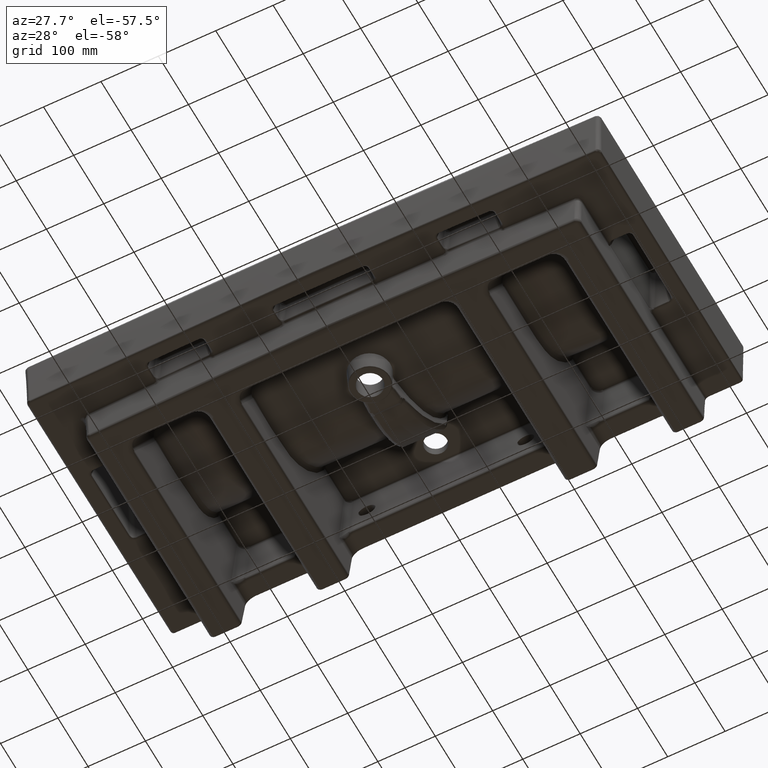
[diagram: clean part render]
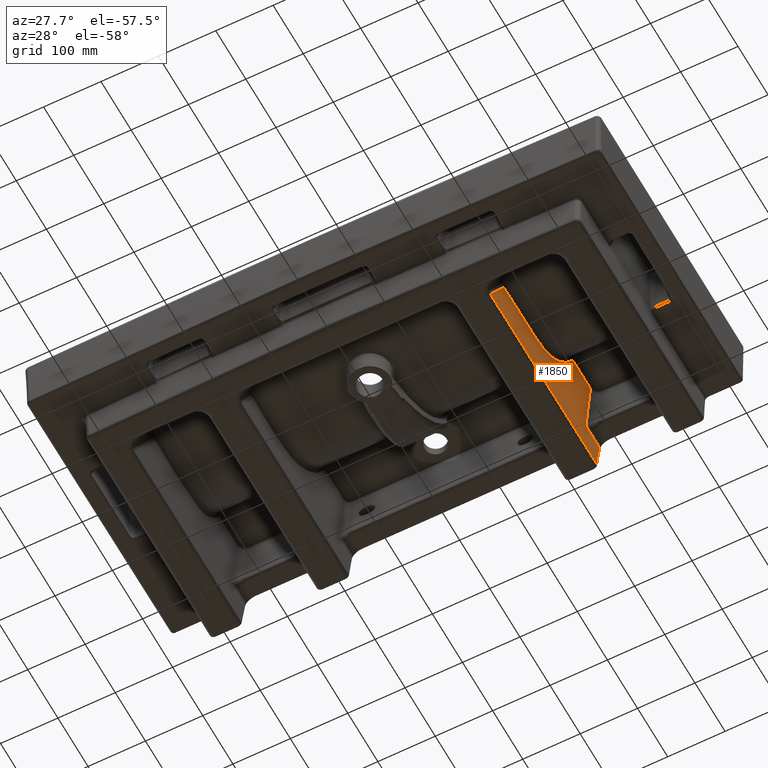
[diagram: same view with one face highlighted and labeled with its STEP entity id]
A machine part, auxiliary view. The second image highlights one B-rep face of the part: STEP entity #1850.
In plain terms, the highlighted planar face has unit normal (-0.9925, -0.0011, 0.1219).
Its self-contained STEP definition (entity closure, byte-faithful):
#282=LINE('',#46916,#422);
#283=LINE('',#46919,#423);
#284=LINE('',#46921,#424);
#285=LINE('',#46923,#425);
#286=LINE('',#46925,#426);
#287=LINE('',#46950,#427);
#422=VECTOR('',#7538,1.);
#423=VECTOR('',#7539,1.);
#424=VECTOR('',#7540,1.);
#425=VECTOR('',#7541,1.);
#426=VECTOR('',#7542,1.);
#427=VECTOR('',#7543,1.);
#882=FACE_OUTER_BOUND('',#2676,.T.);
#1462=B_SPLINE_CURVE_WITH_KNOTS('',3,(#46927,#46928,#46929,#46930,#46931,
#46932,#46933,#46934,#46935,#46936,#46937,#46938,#46939,#46940,#46941,#46942,
#46943,#46944,#46945,#46946,#46947,#46948),.UNSPECIFIED.,.F.,.F.,(4,2,2,
2,2,2,2,2,2,2,4),(0.,0.250000000000001,0.375000000000001,0.5,0.5625,0.625,
0.6875,0.75,0.875,0.9375,1.),.UNSPECIFIED.);
#1850=ADVANCED_FACE('',(#882),#2202,.F.);
#2202=PLANE('',#6820);
#2676=EDGE_LOOP('',(#3645,#3646,#3647,#3648,#3649,#3650,#3651));
#3645=ORIENTED_EDGE('',*,*,#6063,.T.);
#3646=ORIENTED_EDGE('',*,*,#6064,.T.);
#3647=ORIENTED_EDGE('',*,*,#6065,.F.);
#3648=ORIENTED_EDGE('',*,*,#6066,.F.);
#3649=ORIENTED_EDGE('',*,*,#6067,.F.);
#3650=ORIENTED_EDGE('',*,*,#6068,.F.);
#3651=ORIENTED_EDGE('',*,*,#6069,.F.);
#5387=VERTEX_POINT('',#46917);
#5388=VERTEX_POINT('',#46918);
#5389=VERTEX_POINT('',#46920);
#5390=VERTEX_POINT('',#46922);
#5391=VERTEX_POINT('',#46924);
#5392=VERTEX_POINT('',#46926);
#5393=VERTEX_POINT('',#46949);
#6063=EDGE_CURVE('',#5387,#5388,#282,.T.);
#6064=EDGE_CURVE('',#5388,#5389,#283,.T.);
#6065=EDGE_CURVE('',#5390,#5389,#284,.T.);
#6066=EDGE_CURVE('',#5391,#5390,#285,.T.);
#6067=EDGE_CURVE('',#5392,#5391,#286,.T.);
#6068=EDGE_CURVE('',#5393,#5392,#1462,.T.);
#6069=EDGE_CURVE('',#5387,#5393,#287,.T.);
#6820=AXIS2_PLACEMENT_3D('',#46951,#7544,#7545);
#7538=DIRECTION('',(-4.25994520571545E-019,0.999961923064172,0.00872653549837393));
#7539=DIRECTION('',(0.121869343405147,-0.00866148922607243,0.992508358525199));
#7540=DIRECTION('',(-4.25994520571545E-019,0.999961923064172,0.00872653549837393));
#7541=DIRECTION('',(-0.12164539926609,0.0692384358635493,-0.990155763421374));
#7542=DIRECTION('',(-4.25994520571545E-019,0.999961923064172,0.00872653549837393));
#7543=DIRECTION('',(0.106759532904102,0.474675503108815,0.873662159465827));
#7544=DIRECTION('',(-0.992546151641322,-0.00106349715138854,0.121864702993979));
#7545=DIRECTION('',(0.121869343405147,-0.00866148922607243,0.992508358525199));
#46916=CARTESIAN_POINT('',(243.95985920961,-5.62359057858952,-166.514575187603));
#46917=CARTESIAN_POINT('',(243.95985920961,-363.131017902346,-169.634495240072));
#46918=CARTESIAN_POINT('',(243.95985920961,-9.62343827084622,-166.549481329597));
#46919=CARTESIAN_POINT('',(243.920294172891,-9.62062630739668,-166.87170042549));
#46920=CARTESIAN_POINT('',(249.137512604079,-9.99142408121889,-124.382484052251));
#46921=CARTESIAN_POINT('',(249.137512604079,45.5399571397297,-123.897869030097));
#46922=CARTESIAN_POINT('',(249.137512604079,-55.4146160413005,-124.77888624312));
#46923=CARTESIAN_POINT('',(243.195273644728,-52.0323974489397,-173.146865539718));
#46924=CARTESIAN_POINT('',(260.269091795154,-61.7505164249665,-34.171289420539));
#46925=CARTESIAN_POINT('',(260.269091795154,44.7488143425445,-33.2418838411267));
#46926=CARTESIAN_POINT('',(260.269091795154,-120.351927745166,-34.6826961894823));
#46927=CARTESIAN_POINT('',(251.003759014145,-331.812346935801,-111.991036647773));
#46928=CARTESIAN_POINT('',(250.963596773485,-311.534287055365,-112.141180356657));
#46929=CARTESIAN_POINT('',(250.956817297709,-291.258477423452,-112.019452548442));
#46930=CARTESIAN_POINT('',(250.978464832172,-260.846907662842,-111.577743066451));
#46931=CARTESIAN_POINT('',(250.993008604317,-250.702194487157,-111.370757466698));
#46932=CARTESIAN_POINT('',(251.089861436837,-230.468110690784,-110.405344235621));
#46933=CARTESIAN_POINT('',(251.161030246133,-220.370279602192,-109.73757628985));
#46934=CARTESIAN_POINT('',(251.429940200151,-205.360508979387,-107.416408787285));
#46935=CARTESIAN_POINT('',(251.548592976512,-200.345596419463,-106.406258196057));
#46936=CARTESIAN_POINT('',(251.879508867476,-190.571909246696,-103.625768240924));
#46937=CARTESIAN_POINT('',(252.089357756905,-185.852208666539,-101.875432905809));
#46938=CARTESIAN_POINT('',(252.598437878968,-176.749354383071,-97.6497107485432));
#46939=CARTESIAN_POINT('',(252.900688637678,-172.377569950631,-95.1498301416611));
#46940=CARTESIAN_POINT('',(253.594789964381,-163.971366776788,-89.4232533999769));
#46941=CARTESIAN_POINT('',(253.979187109743,-159.998531384603,-86.2578002623868));
#46942=CARTESIAN_POINT('',(255.201643356179,-148.75540528609,-76.2031967108655));
#46943=CARTESIAN_POINT('',(256.116278190916,-142.080298877195,-68.69555734074));
#46944=CARTESIAN_POINT('',(257.606418098874,-133.040414080392,-56.4799896972067));
#46945=CARTESIAN_POINT('',(258.113951240078,-130.161562459221,-52.3211832160927));
#46946=CARTESIAN_POINT('',(259.165170008229,-124.901818154212,-43.7134662958038));
#46947=CARTESIAN_POINT('',(259.71223301082,-122.560903542276,-39.2373971753243));
#46948=CARTESIAN_POINT('',(260.269091795154,-120.351927745166,-34.6826961894823));
#46949=CARTESIAN_POINT('',(251.003759014145,-331.812346935801,-111.991036647773));
#46950=CARTESIAN_POINT('',(264.990956004292,-269.62230556175,2.47260322467795));
#46951=CARTESIAN_POINT('',(243.920294172891,45.9107549135519,-166.387085403336));